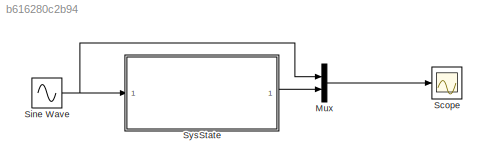
MODEL slx_b616280c2b94
KIND model
BLOCK [Mux] Mux
  DisplayOption = bar
  Inputs = 2
  Ports = [2, 1]
BLOCK [Scope] Scope
  DataFormat = StructureWithTime
  Floating = off
  NumInputPorts = 1
  Ports = [1]
  SampleTime = 0
  ShowLegends = off
BLOCK [Sin] Sine Wave
  Ports = [0, 1]
  SampleTime = 0
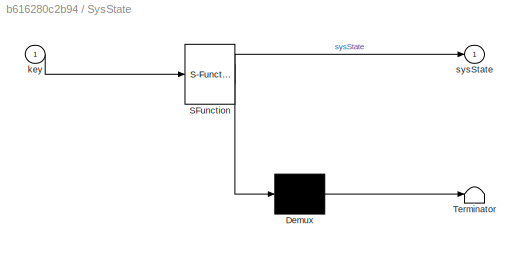
BLOCK [SubSystem] SysState
  ErrorFcn = Stateflow.Translate.translate
  PermitHierarchicalResolution = ExplicitOnly
  Ports = [1, 1]
  RequestExecContextInheritance = off
  SFBlockType = Chart
  TreatAsAtomicUnit = on
BLOCK [Demux] SysState/ Demux 
  Outputs = 1
  Ports = [1, 1]
BLOCK [S-Function] SysState/ SFunction 
  EnableBusSupport = on
  FunctionName = sf_sfun
  PortCounts = [1 2]
  Ports = [1, 2]
  Tag = Stateflow S-Function test1 3
BLOCK [Terminator] SysState/ Terminator 
BLOCK [Inport] SysState/key
  IconDisplay = Port number
BLOCK [Outport] SysState/sysState
  IconDisplay = Port number
LINE Mux:1 -> Scope:1
NET Sine Wave:1 -> Mux:1, SysState:1
LINE SysState:1 -> Mux:2
note: NET lines group one-source signal fan-out (src -> all destinations, sorted); 1:1 wires keep LINE
